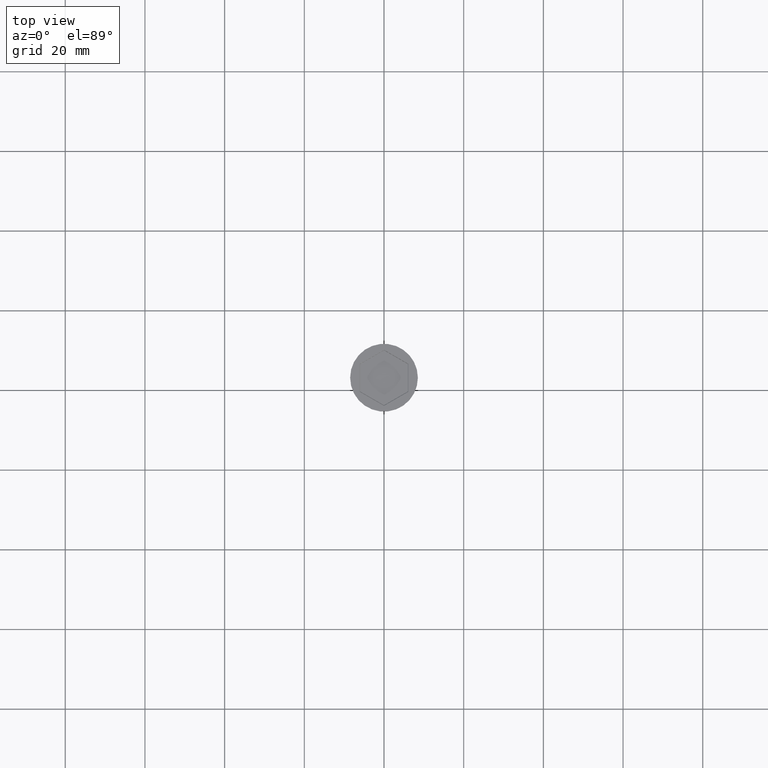
[diagram: clean part render]
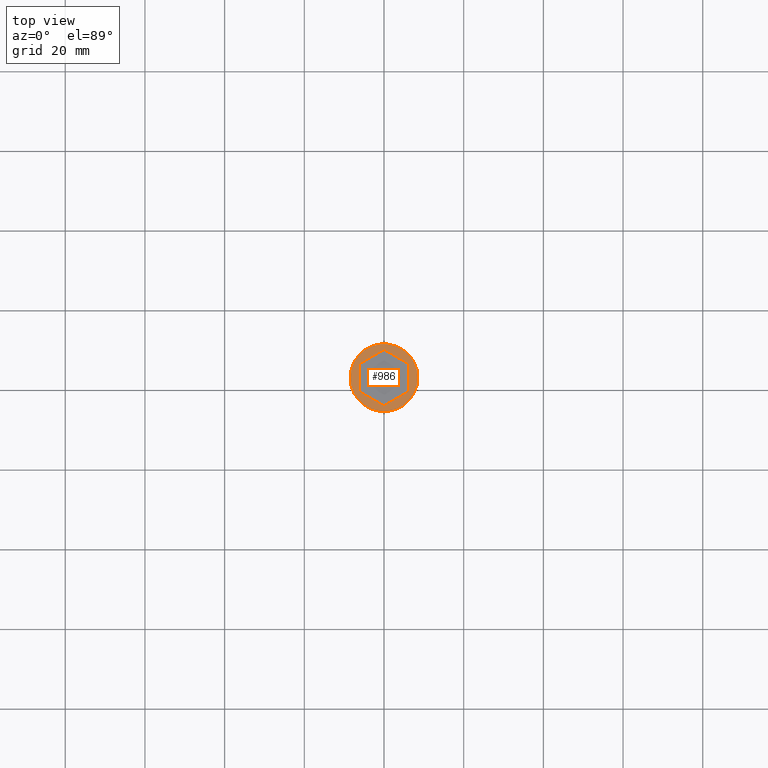
[diagram: same view with one face highlighted and labeled with its STEP entity id]
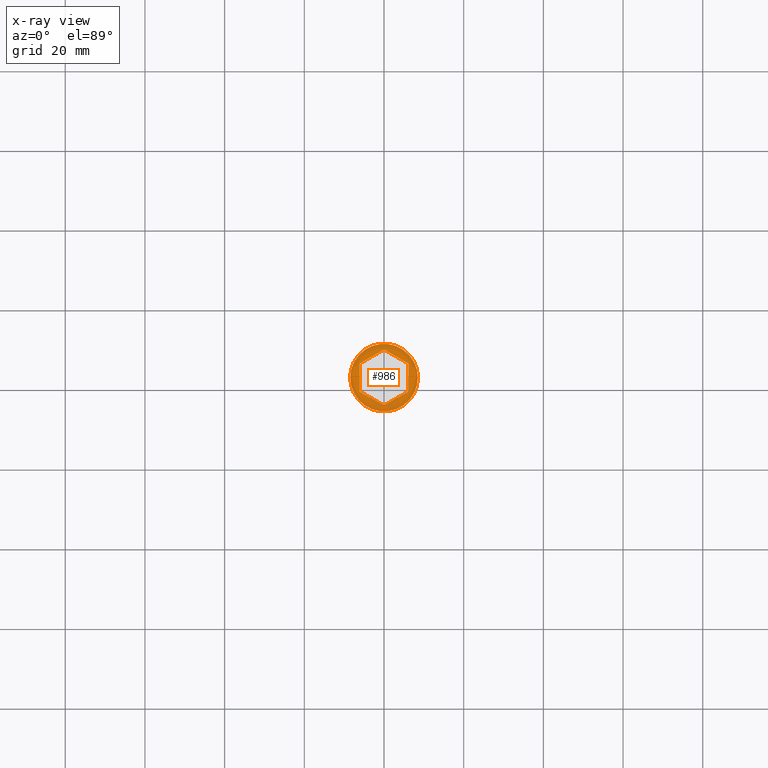
[diagram: x-ray of the same camera — body ghosted, the highlighted face saturated]
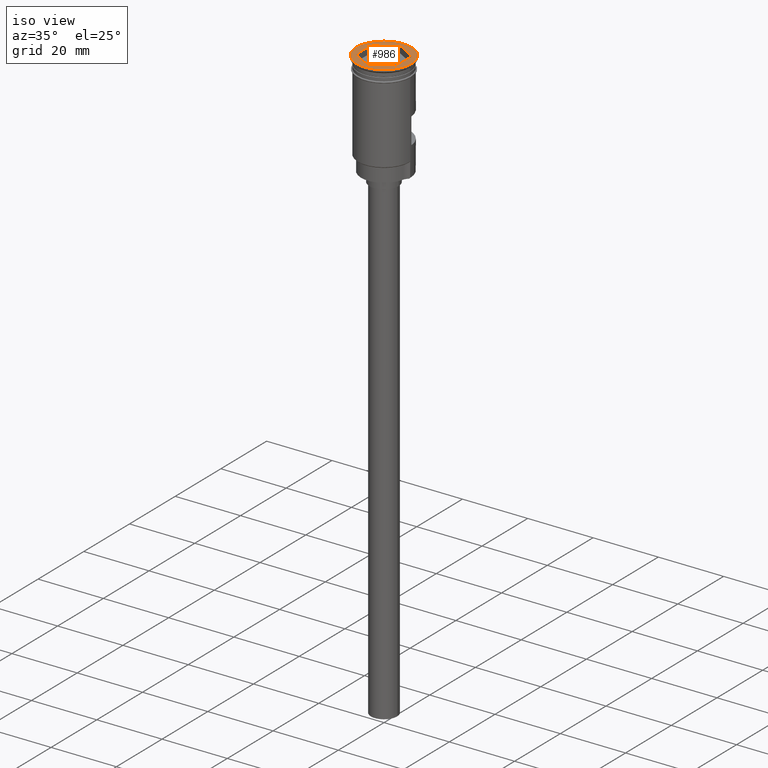
[diagram: same view with one face highlighted and labeled with its STEP entity id]
A machine part, top view. The second image highlights one B-rep face of the part: STEP entity #986.
The next image is the same camera in x-ray: the body ghosted, the highlighted face saturated — about 0% of this face is hidden behind the body in this view.
A second angle (iso view) of the same face is appended — the face is thin or edge-on in the first view.
In plain terms, the highlighted planar face has unit normal (0, -0, 1).
Its self-contained STEP definition (entity closure, byte-faithful):
#14 = DIRECTION ( 'NONE',  ( 0.8660254037844387076, -0.4999999999999998335, 0.000000000000000000 ) ) ;
#32 = VECTOR ( 'NONE', #569, 999.9999999999998863 ) ;
#79 = EDGE_CURVE ( 'NONE', #934, #1166, #556, .T. ) ;
#152 = CARTESIAN_POINT ( 'NONE',  ( 6.100000000000007638, -3.521836642056722866, 0.000000000000000000 ) ) ;
#154 = CARTESIAN_POINT ( 'NONE',  ( -9.509961900721253228E-16, 7.043673284113440403, 0.000000000000000000 ) ) ;
#158 = EDGE_LOOP ( 'NONE', ( #1143, #1046, #512, #788, #624, #618 ) ) ;
#217 = FACE_BOUND ( 'NONE', #158, .T. ) ;
#225 = VECTOR ( 'NONE', #733, 999.9999999999998863 ) ;
#276 = VERTEX_POINT ( 'NONE', #1227 ) ;
#339 = LINE ( 'NONE', #1190, #1183 ) ;
#449 = EDGE_CURVE ( 'NONE', #1575, #276, #1034, .T. ) ;
#459 = VECTOR ( 'NONE', #1454, 1000.000000000000000 ) ;
#476 = CARTESIAN_POINT ( 'NONE',  ( -0.05000000000000349998, 7.014805770653958383, 0.000000000000000000 ) ) ;
#486 = CARTESIAN_POINT ( 'NONE',  ( 0.05000000000000536654, -7.014805770653961048, 0.000000000000000000 ) ) ;
#505 = AXIS2_PLACEMENT_3D ( 'NONE', #1529, #567, #1550 ) ;
#508 = DIRECTION ( 'NONE',  ( 0.8660254037844385966, 0.5000000000000002220, 0.000000000000000000 ) ) ;
#512 = ORIENTED_EDGE ( 'NONE', *, *, #449, .T. ) ;
#538 = EDGE_CURVE ( 'NONE', #1166, #934, #1087, .T. ) ;
#556 = CIRCLE ( 'NONE', #505, 8.500000000000000000 ) ;
#559 = FACE_OUTER_BOUND ( 'NONE', #1588, .T. ) ;
#567 = DIRECTION ( 'NONE',  ( -0.000000000000000000, -0.000000000000000000, 1.000000000000000000 ) ) ;
#569 = DIRECTION ( 'NONE',  ( -0.8660254037844385966, 0.5000000000000002220, 0.000000000000000000 ) ) ;
#583 = CARTESIAN_POINT ( 'NONE',  ( -6.100000000000008527, 3.464101615137752166, 0.000000000000000000 ) ) ;
#618 = ORIENTED_EDGE ( 'NONE', *, *, #1002, .T. ) ;
#624 = ORIENTED_EDGE ( 'NONE', *, *, #735, .T. ) ;
#630 = LINE ( 'NONE', #486, #225 ) ;
#639 = EDGE_CURVE ( 'NONE', #276, #903, #339, .T. ) ;
#723 = PLANE ( 'NONE',  #1463 ) ;
#733 = DIRECTION ( 'NONE',  ( -0.8660254037844385966, -0.5000000000000002220, 0.000000000000000000 ) ) ;
#735 = EDGE_CURVE ( 'NONE', #903, #1265, #630, .T. ) ;
#736 = LINE ( 'NONE', #476, #1280 ) ;
#775 = CARTESIAN_POINT ( 'NONE',  ( -8.500000000000000000, 1.040949779275250140E-15, 0.000000000000000000 ) ) ;
#788 = ORIENTED_EDGE ( 'NONE', *, *, #639, .T. ) ;
#819 = LINE ( 'NONE', #583, #459 ) ;
#821 = CARTESIAN_POINT ( 'NONE',  ( 0.000000000000000000, 0.000000000000000000, 0.000000000000000000 ) ) ;
#871 = CARTESIAN_POINT ( 'NONE',  ( -6.100000000000008527, 3.521836642056717537, 0.000000000000000000 ) ) ;
#903 = VERTEX_POINT ( 'NONE', #152 ) ;
#934 = VERTEX_POINT ( 'NONE', #775 ) ;
#944 = EDGE_CURVE ( 'NONE', #1126, #1159, #819, .T. ) ;
#950 = LINE ( 'NONE', #1071, #32 ) ;
#957 = DIRECTION ( 'NONE',  ( 0.000000000000000000, -0.000000000000000000, 1.000000000000000000 ) ) ;
#986 = ADVANCED_FACE ( 'NONE', ( #217, #559 ), #723, .T. ) ;
#995 = VECTOR ( 'NONE', #14, 1000.000000000000000 ) ;
#1002 = EDGE_CURVE ( 'NONE', #1265, #1126, #950, .T. ) ;
#1034 = LINE ( 'NONE', #1136, #995 ) ;
#1046 = ORIENTED_EDGE ( 'NONE', *, *, #1082, .T. ) ;
#1071 = CARTESIAN_POINT ( 'NONE',  ( -6.050000000000004263, -3.550704155516205773, 0.000000000000000000 ) ) ;
#1082 = EDGE_CURVE ( 'NONE', #1159, #1575, #736, .T. ) ;
#1087 = CIRCLE ( 'NONE', #1210, 8.500000000000000000 ) ;
#1104 = DIRECTION ( 'NONE',  ( -0.000000000000000000, -0.000000000000000000, 1.000000000000000000 ) ) ;
#1126 = VERTEX_POINT ( 'NONE', #1471 ) ;
#1136 = CARTESIAN_POINT ( 'NONE',  ( 6.050000000000003375, 3.550704155516203553, 0.000000000000000000 ) ) ;
#1137 = ORIENTED_EDGE ( 'NONE', *, *, #538, .T. ) ;
#1143 = ORIENTED_EDGE ( 'NONE', *, *, #944, .T. ) ;
#1159 = VERTEX_POINT ( 'NONE', #871 ) ;
#1166 = VERTEX_POINT ( 'NONE', #1466 ) ;
#1183 = VECTOR ( 'NONE', #1587, 1000.000000000000000 ) ;
#1190 = CARTESIAN_POINT ( 'NONE',  ( 6.100000000000007638, -3.464101615137756607, 0.000000000000000000 ) ) ;
#1197 = CARTESIAN_POINT ( 'NONE',  ( 0.000000000000000000, 0.000000000000000000, 0.000000000000000000 ) ) ;
#1210 = AXIS2_PLACEMENT_3D ( 'NONE', #821, #1104, #1574 ) ;
#1227 = CARTESIAN_POINT ( 'NONE',  ( 6.100000000000007638, 3.521836642056720201, 0.000000000000000000 ) ) ;
#1265 = VERTEX_POINT ( 'NONE', #1413 ) ;
#1280 = VECTOR ( 'NONE', #508, 999.9999999999998863 ) ;
#1353 = ORIENTED_EDGE ( 'NONE', *, *, #79, .T. ) ;
#1413 = CARTESIAN_POINT ( 'NONE',  ( 6.606856988583603042E-17, -7.043673284113445732, 0.000000000000000000 ) ) ;
#1454 = DIRECTION ( 'NONE',  ( -1.251928832280966188E-16, 1.000000000000000000, 0.000000000000000000 ) ) ;
#1463 = AXIS2_PLACEMENT_3D ( 'NONE', #1197, #957, #1552 ) ;
#1466 = CARTESIAN_POINT ( 'NONE',  ( 8.500000000000000000, 0.000000000000000000, 0.000000000000000000 ) ) ;
#1471 = CARTESIAN_POINT ( 'NONE',  ( -6.100000000000007638, -3.521836642056722866, 0.000000000000000000 ) ) ;
#1529 = CARTESIAN_POINT ( 'NONE',  ( 0.000000000000000000, 0.000000000000000000, 0.000000000000000000 ) ) ;
#1550 = DIRECTION ( 'NONE',  ( 1.000000000000000000, 0.000000000000000000, 0.000000000000000000 ) ) ;
#1552 = DIRECTION ( 'NONE',  ( 1.000000000000000000, 0.000000000000000000, 0.000000000000000000 ) ) ;
#1574 = DIRECTION ( 'NONE',  ( 1.000000000000000000, 0.000000000000000000, 0.000000000000000000 ) ) ;
#1575 = VERTEX_POINT ( 'NONE', #154 ) ;
#1587 = DIRECTION ( 'NONE',  ( 0.000000000000000000, -1.000000000000000000, -0.000000000000000000 ) ) ;
#1588 = EDGE_LOOP ( 'NONE', ( #1137, #1353 ) ) ;